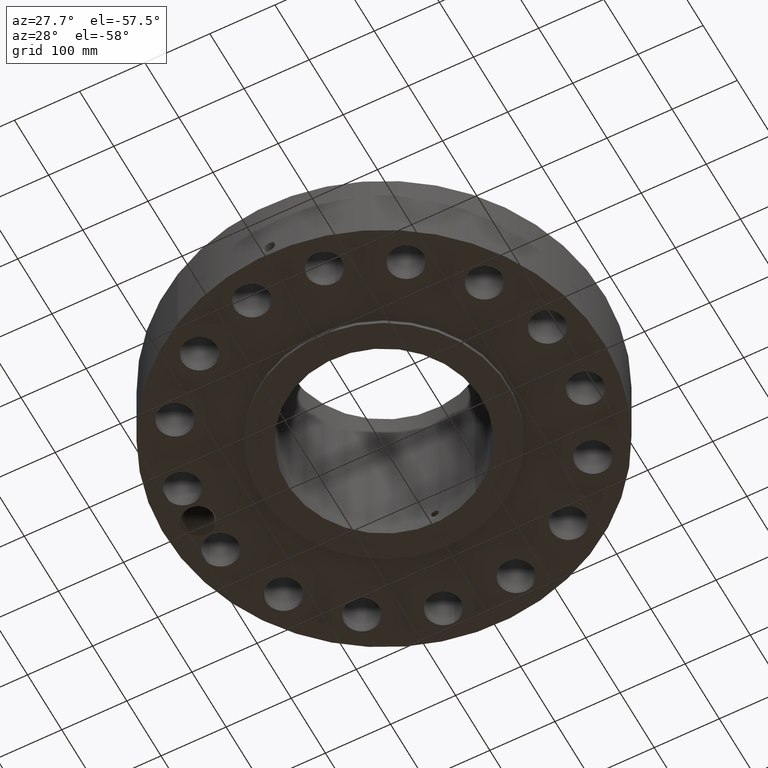
[diagram: clean part render]
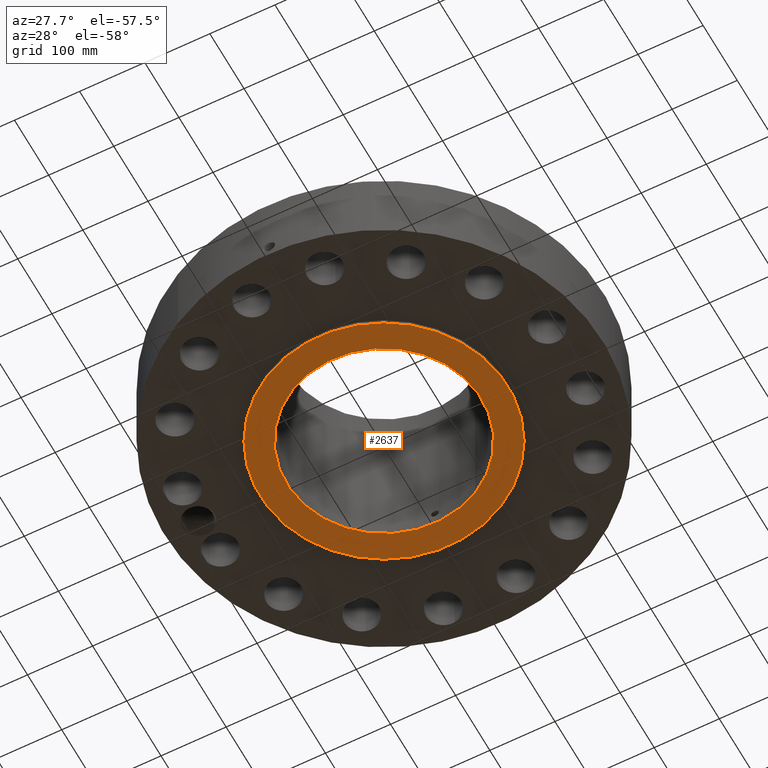
[diagram: same view with one face highlighted and labeled with its STEP entity id]
A machine part, auxiliary view. The second image highlights one B-rep face of the part: STEP entity #2637.
In plain terms, the highlighted planar face has unit normal (0, 0, -1).
Its self-contained STEP definition (entity closure, byte-faithful):
#1430=AXIS2_PLACEMENT_3D('Circle Axis2P3D',#1428,#1429,$) ;
#1456=AXIS2_PLACEMENT_3D('Circle Axis2P3D',#1454,#1455,$) ;
#2613=AXIS2_PLACEMENT_3D('Plane Axis2P3D',#2610,#2611,#2612) ;
#2621=AXIS2_PLACEMENT_3D('Circle Axis2P3D',#2619,#2620,$) ;
#2630=AXIS2_PLACEMENT_3D('Circle Axis2P3D',#2628,#2629,$) ;
#1428=CARTESIAN_POINT('Axis2P3D Location',(0.,0.,1.1189649382E-015)) ;
#1432=CARTESIAN_POINT('Vertex',(3.59569153955,6.5818692142,1.1189649382E-015)) ;
#1434=CARTESIAN_POINT('Vertex',(-3.59569153955,-6.5818692142,1.1189649382E-015)) ;
#1454=CARTESIAN_POINT('Axis2P3D Location',(0.,0.,1.1189649382E-015)) ;
#2610=CARTESIAN_POINT('Axis2P3D Location',(0.,5.87500000002,0.)) ;
#2619=CARTESIAN_POINT('Axis2P3D Location',(0.,0.,0.)) ;
#2623=CARTESIAN_POINT('Vertex',(2.81662503931,5.15579755113,-2.23792987641E-014)) ;
#2625=CARTESIAN_POINT('Vertex',(-2.81662503931,-5.15579755113,-2.23792987641E-014)) ;
#2628=CARTESIAN_POINT('Axis2P3D Location',(0.,0.,0.)) ;
#1429=DIRECTION('Axis2P3D Direction',(0.,0.,-0.0393700787402)) ;
#1455=DIRECTION('Axis2P3D Direction',(0.,0.,-0.0393700787402)) ;
#2611=DIRECTION('Axis2P3D Direction',(0.,0.,-0.0393700787402)) ;
#2612=DIRECTION('Axis2P3D XDirection',(0.0393700787402,0.,0.)) ;
#2620=DIRECTION('Axis2P3D Direction',(0.,0.,-0.0393700787402)) ;
#2629=DIRECTION('Axis2P3D Direction',(0.,0.,-0.0393700787402)) ;
#2616=ORIENTED_EDGE('',*,*,#1458,.T.) ;
#2617=ORIENTED_EDGE('',*,*,#1436,.T.) ;
#2634=ORIENTED_EDGE('',*,*,#2627,.F.) ;
#2635=ORIENTED_EDGE('',*,*,#2632,.F.) ;
#2636=FACE_BOUND('',#2633,.T.) ;
#2637=ADVANCED_FACE('PartBody',(#2618,#2636),#2614,.T.) ;
#1431=CIRCLE('generated circle',#1430,7.50000000003) ;
#1457=CIRCLE('generated circle',#1456,7.50000000003) ;
#2622=CIRCLE('generated circle',#2621,5.87500000002) ;
#2631=CIRCLE('generated circle',#2630,5.87500000002) ;
#1436=EDGE_CURVE('',#1433,#1435,#1431,.T.) ;
#1458=EDGE_CURVE('',#1435,#1433,#1457,.T.) ;
#2627=EDGE_CURVE('',#2624,#2626,#2622,.T.) ;
#2632=EDGE_CURVE('',#2626,#2624,#2631,.T.) ;
#2615=EDGE_LOOP('',(#2616,#2617)) ;
#2633=EDGE_LOOP('',(#2634,#2635)) ;
#2618=FACE_OUTER_BOUND('',#2615,.T.) ;
#2614=PLANE('',#2613) ;
#1433=VERTEX_POINT('',#1432) ;
#1435=VERTEX_POINT('',#1434) ;
#2624=VERTEX_POINT('',#2623) ;
#2626=VERTEX_POINT('',#2625) ;